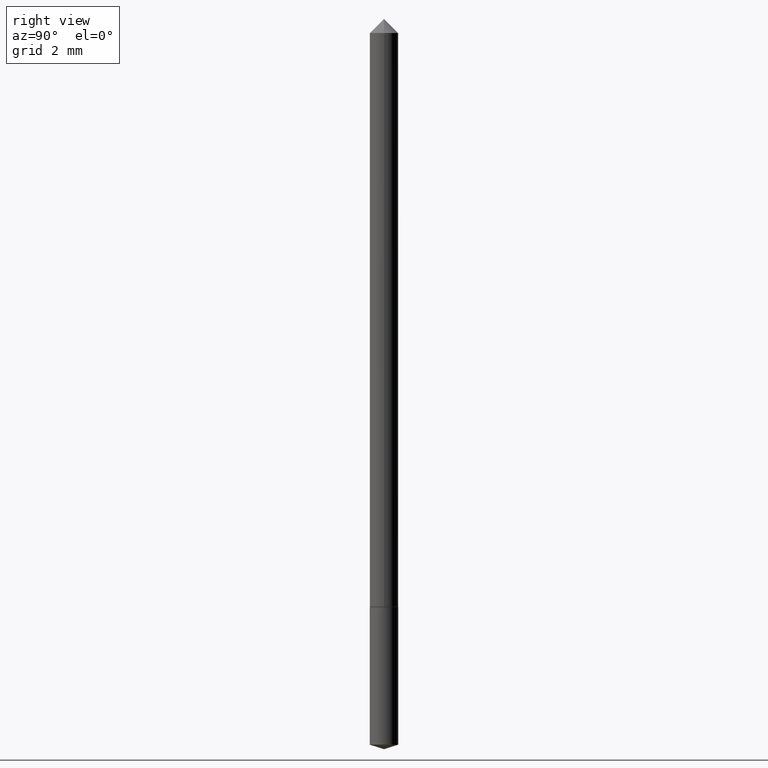
[diagram: clean part render]
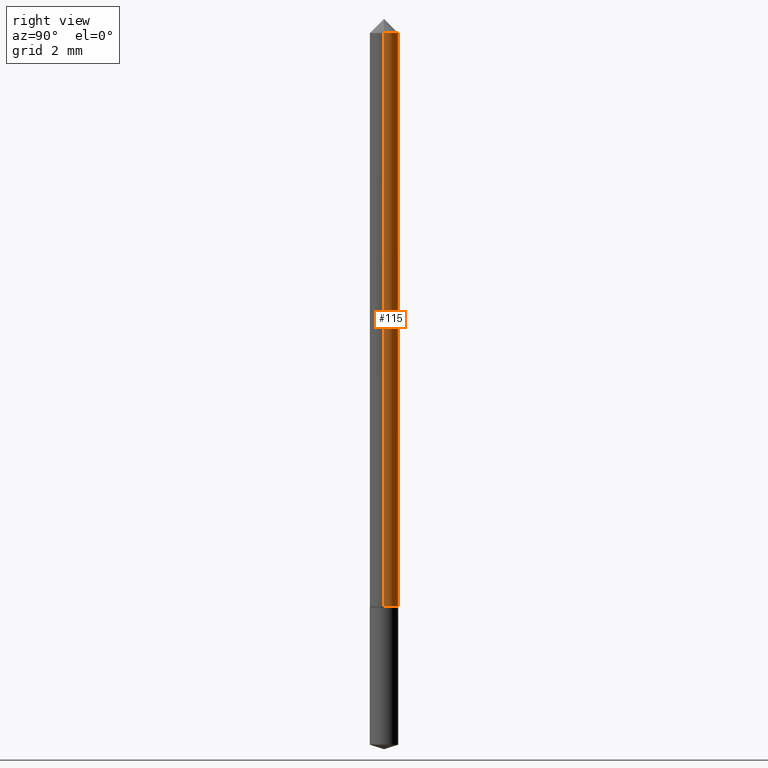
[diagram: same view with one face highlighted and labeled with its STEP entity id]
A machine part, right view. The second image highlights one B-rep face of the part: STEP entity #115.
In plain terms, the highlighted cylindrical surface (edge-blend (fillet) strip) has radius 0.5004 mm, axis along (-0, 0, 1).
Its self-contained STEP definition (entity closure, byte-faithful):
#12 = DIRECTION ( 'NONE',  ( -2.445468806185136597E-29, 3.491481338843145583E-15, 1.000000000000000000 ) ) ;
#17 = ORIENTED_EDGE ( 'NONE', *, *, #207, .T. ) ;
#21 = EDGE_LOOP ( 'NONE', ( #17, #146, #148, #251 ) ) ;
#27 = CARTESIAN_POINT ( 'NONE',  ( -0.01970000000000009938, -2.745034111341350691E-15, -0.8263000000000000345 ) ) ;
#51 = LINE ( 'NONE', #272, #257 ) ;
#52 = VERTEX_POINT ( 'NONE', #127 ) ;
#61 = CARTESIAN_POINT ( 'NONE',  ( 0.000000000000000000, 0.000000000000000000, 0.000000000000000000 ) ) ;
#62 = AXIS2_PLACEMENT_3D ( 'NONE', #77, #119, #232 ) ;
#77 = CARTESIAN_POINT ( 'NONE',  ( 7.642090019328601786E-31, -1.091087918388490144E-16, -0.03125000000000020123 ) ) ;
#83 = VERTEX_POINT ( 'NONE', #89 ) ;
#88 = FACE_OUTER_BOUND ( 'NONE', #21, .T. ) ;
#89 = CARTESIAN_POINT ( 'NONE',  ( -0.01970000000000000223, -1.357082992117728466E-15, -0.03125000000000020123 ) ) ;
#92 = CIRCLE ( 'NONE', #174, 0.01970000000000009938 ) ;
#102 = CIRCLE ( 'NONE', #62, 0.01970000000000000223 ) ;
#105 = DIRECTION ( 'NONE',  ( -2.445468806185136877E-29, 3.491481338843145188E-15, 1.000000000000000000 ) ) ;
#108 = CARTESIAN_POINT ( 'NONE',  ( 2.020690874550778472E-29, -2.885011030286090788E-15, -0.8263000000000000345 ) ) ;
#113 = DIRECTION ( 'NONE',  ( 1.000000000000000000, -6.982962677686266711E-15, 4.876176775795936353E-29 ) ) ;
#115 = ADVANCED_FACE ( 'NONE', ( #88 ), #199, .T. ) ;
#117 = EDGE_CURVE ( 'NONE', #52, #83, #102, .T. ) ;
#119 = DIRECTION ( 'NONE',  ( -2.445468806185136597E-29, 3.491481338843145583E-15, 1.000000000000000000 ) ) ;
#127 = CARTESIAN_POINT ( 'NONE',  ( 0.01970000000000000223, -2.466731565892684629E-16, -0.03125000000000020123 ) ) ;
#137 = CARTESIAN_POINT ( 'NONE',  ( 0.01970000000000009938, -3.022575395036511186E-15, -0.8263000000000000345 ) ) ;
#146 = ORIENTED_EDGE ( 'NONE', *, *, #291, .T. ) ;
#148 = ORIENTED_EDGE ( 'NONE', *, *, #117, .F. ) ;
#174 = AXIS2_PLACEMENT_3D ( 'NONE', #108, #12, #239 ) ;
#175 = VERTEX_POINT ( 'NONE', #137 ) ;
#177 = DIRECTION ( 'NONE',  ( -2.445468806185136597E-29, 3.491481338843145583E-15, 1.000000000000000000 ) ) ;
#193 = VERTEX_POINT ( 'NONE', #27 ) ;
#199 = CYLINDRICAL_SURFACE ( 'NONE', #281, 0.01970000000000004733 ) ;
#207 = EDGE_CURVE ( 'NONE', #175, #193, #92, .T. ) ;
#232 = DIRECTION ( 'NONE',  ( 1.000000000000000000, -6.982962677686267499E-15, 0.000000000000000000 ) ) ;
#239 = DIRECTION ( 'NONE',  ( 1.000000000000000000, -6.982962677686268288E-15, 0.000000000000000000 ) ) ;
#250 = CARTESIAN_POINT ( 'NONE',  ( 0.01970000000000004733, -1.375643647504197814E-16, 9.606068248318017740E-31 ) ) ;
#251 = ORIENTED_EDGE ( 'NONE', *, *, #328, .F. ) ;
#257 = VECTOR ( 'NONE', #105, 39.37007874015748143 ) ;
#272 = CARTESIAN_POINT ( 'NONE',  ( -0.01970000000000004733, 1.399769189447400729E-16, -9.690302127802188776E-31 ) ) ;
#281 = AXIS2_PLACEMENT_3D ( 'NONE', #61, #177, #113 ) ;
#282 = DIRECTION ( 'NONE',  ( -2.445468806185136877E-29, 3.491481338843145188E-15, 1.000000000000000000 ) ) ;
#291 = EDGE_CURVE ( 'NONE', #193, #83, #51, .T. ) ;
#318 = VECTOR ( 'NONE', #282, 39.37007874015748143 ) ;
#327 = LINE ( 'NONE', #250, #318 ) ;
#328 = EDGE_CURVE ( 'NONE', #175, #52, #327, .T. ) ;